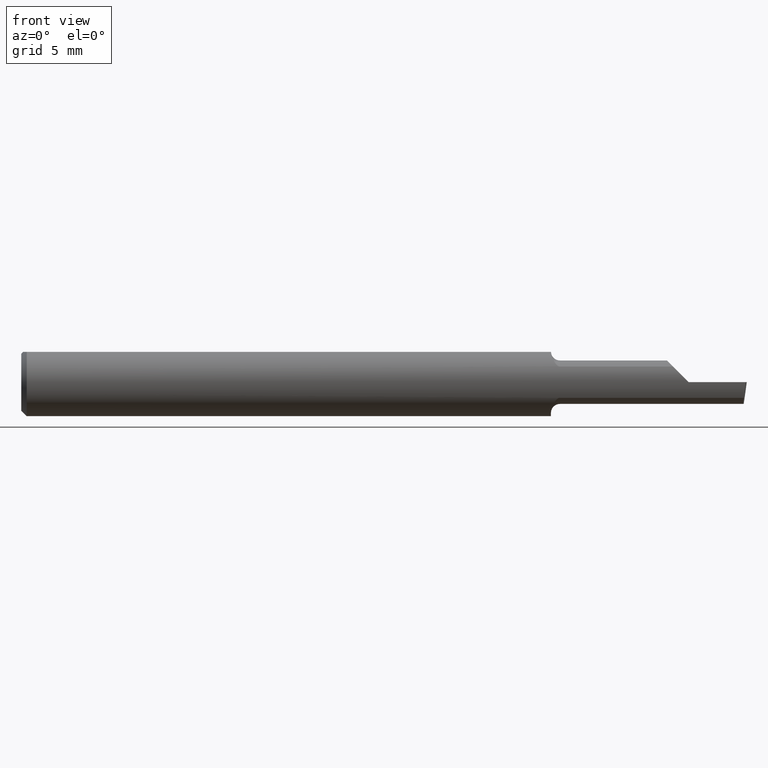
[diagram: clean part render]
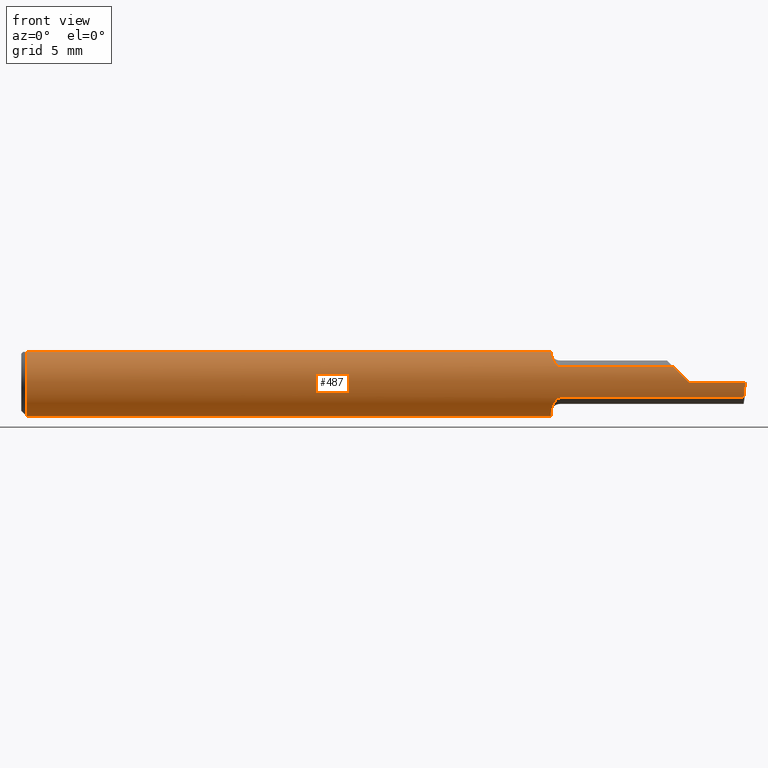
[diagram: same view with one face highlighted and labeled with its STEP entity id]
A machine part, front view. The second image highlights one B-rep face of the part: STEP entity #487.
In plain terms, the highlighted cylindrical surface (edge-blend (fillet) strip) has radius 2.3774 mm, axis along (-1, -0, -0).
Its self-contained STEP definition (entity closure, byte-faithful):
#4 = B_SPLINE_CURVE_WITH_KNOTS ( 'NONE', 3,
 ( #148, #225, #497, #697 ),
 .UNSPECIFIED., .F., .F.,
 ( 4, 4 ),
 ( 0.001735506710063806739, 0.001793010945052110183 ),
 .UNSPECIFIED. ) ;
#7 = ORIENTED_EDGE ( 'NONE', *, *, #9, .F. ) ;
#9 = EDGE_CURVE ( 'NONE', #543, #617, #201, .T. ) ;
#13 = EDGE_CURVE ( 'NONE', #182, #440, #228, .T. ) ;
#15 = CARTESIAN_POINT ( 'NONE',  ( 1.796877448822106649, -0.08307469879518074307, 0.04312255117789294545 ) ) ;
#16 = ORIENTED_EDGE ( 'NONE', *, *, #196, .F. ) ;
#18 = DIRECTION ( 'NONE',  ( 0.0000000000000000000, 0.0000000000000000000, 1.000000000000000000 ) ) ;
#19 = CARTESIAN_POINT ( 'NONE',  ( 5.659797890829555466E-31, -0.09359999999999998876, 1.030335658007946046E-15 ) ) ;
#46 = CARTESIAN_POINT ( 'NONE',  ( 1.824917075065774830, -0.09360000000000001652, 0.01508292493422502302 ) ) ;
#48 = DIRECTION ( 'NONE',  ( 1.000000000000000000, 0.0000000000000000000, 0.0000000000000000000 ) ) ;
#51 = CARTESIAN_POINT ( 'NONE',  ( 1.484999999999999876, -0.08307469879518063205, 0.04312255117789300790 ) ) ;
#64 = DIRECTION ( 'NONE',  ( -1.000000000000000000, -0.0000000000000000000, -0.0000000000000000000 ) ) ;
#75 = CIRCLE ( 'NONE', #94, 0.09360000000000001652 ) ;
#77 = CARTESIAN_POINT ( 'NONE',  ( 0.01499999999999999598, 0.04209513035969837669, 0.08360000000000000764 ) ) ;
#80 = CARTESIAN_POINT ( 'NONE',  ( 1.840000000000000080, -0.09360000000000005815, 1.959434878635762025E-17 ) ) ;
#94 = AXIS2_PLACEMENT_3D ( 'NONE', #648, #455, #18 ) ;
#98 = EDGE_CURVE ( 'NONE', #440, #153, #161, .T. ) ;
#102 = CARTESIAN_POINT ( 'NONE',  ( 0.0000000000000000000, 0.0000000000000000000, 0.0000000000000000000 ) ) ;
#103 = VERTEX_POINT ( 'NONE', #284 ) ;
#106 = CARTESIAN_POINT ( 'NONE',  ( 1.991365359011875169, -0.08307469879518077083, -0.04312255117789289688 ) ) ;
#117 = CARTESIAN_POINT ( 'NONE',  ( 1.669999999999999929, -0.08307469879518077083, 0.04312255117789289688 ) ) ;
#120 = VECTOR ( 'NONE', #562, 39.37007874015748143 ) ;
#121 = DIRECTION ( 'NONE',  ( -1.000000000000000000, -0.0000000000000000000, -0.0000000000000000000 ) ) ;
#139 = CARTESIAN_POINT ( 'NONE',  ( 1.810264301876177928, -0.09002356847881788637, 0.02973569812382168345 ) ) ;
#146 = CARTESIAN_POINT ( 'NONE',  ( 1.460121283746727894, -0.04659318327468391779, -0.08137765652544189099 ) ) ;
#148 = CARTESIAN_POINT ( 'NONE',  ( 1.460020127471512996, -0.04149999999999998829, -0.08389702020930184245 ) ) ;
#153 = VERTEX_POINT ( 'NONE', #726 ) ;
#160 = DIRECTION ( 'NONE',  ( 1.000000000000000000, 0.0000000000000000000, 0.0000000000000000000 ) ) ;
#161 =( BOUNDED_CURVE ( )  B_SPLINE_CURVE ( 3, ( #80, #46, #139, #15 ),
 .UNSPECIFIED., .F., .T. ) 
 B_SPLINE_CURVE_WITH_KNOTS ( ( 4, 4 ),
 ( 4.712388980384689674, 5.191185112936687496 ),
 .UNSPECIFIED. ) 
 CURVE ( )  GEOMETRIC_REPRESENTATION_ITEM ( )  RATIONAL_B_SPLINE_CURVE ( ( 1.000000000000000000, 0.9809872534005956712, 0.9809872534005956712, 1.000000000000000000 ) ) 
 REPRESENTATION_ITEM ( '' )  );
#172 = FACE_OUTER_BOUND ( 'NONE', #320, .T. ) ;
#180 = CARTESIAN_POINT ( 'NONE',  ( 1.460020127471512996, -0.04149999999999998829, -0.08389702020930184245 ) ) ;
#181 = CARTESIAN_POINT ( 'NONE',  ( 1.473672693420809310, -0.07917899622880057720, -0.04997532113045941721 ) ) ;
#182 = VERTEX_POINT ( 'NONE', #441 ) ;
#188 = CARTESIAN_POINT ( 'NONE',  ( 1.467169981117900202, -0.07201923175886887352, 0.06001882546782343064 ) ) ;
#191 = CARTESIAN_POINT ( 'NONE',  ( 1.994533757673610408, -0.09360000000000001652, -0.01508292493422509241 ) ) ;
#196 = EDGE_CURVE ( 'NONE', #239, #103, #713, .T. ) ;
#201 = B_SPLINE_CURVE_WITH_KNOTS ( 'NONE', 3,
 ( #345, #385, #694, #612, #222, #188, #627, #507, #560, #692, #563, #51 ),
 .UNSPECIFIED., .F., .F.,
 ( 4, 2, 2, 2, 2, 4 ),
 ( 4.385794166508631868E-07, 0.0004249653867803444818, 0.0008494921941440384964, 0.001274019001507732457, 0.001486282405189579599, 0.001698545808871426525 ),
 .UNSPECIFIED. ) ;
#204 = ORIENTED_EDGE ( 'NONE', *, *, #415, .F. ) ;
#209 = ORIENTED_EDGE ( 'NONE', *, *, #615, .F. ) ;
#221 = CARTESIAN_POINT ( 'NONE',  ( 1.469237437666585544, -0.07513599091569017618, -0.05602756047418827601 ) ) ;
#222 = CARTESIAN_POINT ( 'NONE',  ( 1.463721006865827512, -0.06478644025684782148, 0.06776242552123264151 ) ) ;
#225 = CARTESIAN_POINT ( 'NONE',  ( 1.460006719116742291, -0.04082489400077269487, -0.08423096411932438909 ) ) ;
#227 = CARTESIAN_POINT ( 'NONE',  ( 1.996386342823452065, -0.09360000000000009979, -6.634435288474567089E-17 ) ) ;
#228 = LINE ( 'NONE', #19, #364 ) ;
#229 = DIRECTION ( 'NONE',  ( -1.000000000000000000, -0.0000000000000000000, -0.0000000000000000000 ) ) ;
#231 = ORIENTED_EDGE ( 'NONE', *, *, #510, .F. ) ;
#238 = DIRECTION ( 'NONE',  ( 0.0000000000000000000, 0.0000000000000000000, -1.000000000000000000 ) ) ;
#239 = VERTEX_POINT ( 'NONE', #77 ) ;
#240 = CARTESIAN_POINT ( 'NONE',  ( 1.840000000000000080, -0.09360000000000005815, 1.959434878635762025E-17 ) ) ;
#245 = CARTESIAN_POINT ( 'NONE',  ( 1.991365359011875169, -0.08307469879518077083, -0.04312255117789289688 ) ) ;
#251 = ORIENTED_EDGE ( 'NONE', *, *, #429, .T. ) ;
#261 = CARTESIAN_POINT ( 'NONE',  ( 1.484999999999999876, -0.08307469879518099287, -0.04312255117789264708 ) ) ;
#267 = CARTESIAN_POINT ( 'NONE',  ( 0.0000000000000000000, 0.04209513035969837669, 0.08360000000000000764 ) ) ;
#270 = ORIENTED_EDGE ( 'NONE', *, *, #449, .F. ) ;
#272 = CARTESIAN_POINT ( 'NONE',  ( 1.669999999999999929, -0.08307469879518077083, -0.04312255117789289688 ) ) ;
#284 = CARTESIAN_POINT ( 'NONE',  ( 0.01499999999999999598, 0.0000000000000000000, -0.09360000000000001652 ) ) ;
#286 = DIRECTION ( 'NONE',  ( -1.000000000000000000, -0.0000000000000000000, -0.0000000000000000000 ) ) ;
#288 = CARTESIAN_POINT ( 'NONE',  ( 0.01499999999999999598, 0.0000000000000000000, 0.0000000000000000000 ) ) ;
#296 = DIRECTION ( 'NONE',  ( -1.000000000000000000, -0.0000000000000000000, -0.0000000000000000000 ) ) ;
#302 =( BOUNDED_CURVE ( )  B_SPLINE_CURVE ( 3, ( #245, #491, #191, #227 ),
 .UNSPECIFIED., .F., .F. ) 
 B_SPLINE_CURVE_WITH_KNOTS ( ( 4, 4 ),
 ( 0.8819507499627845526, 1.360746882514781042 ),
 .UNSPECIFIED. ) 
 CURVE ( )  GEOMETRIC_REPRESENTATION_ITEM ( )  RATIONAL_B_SPLINE_CURVE ( ( 1.000000000000000000, 0.9809872534005956712, 0.9809872534005956712, 1.000000000000000000 ) ) 
 REPRESENTATION_ITEM ( '' )  );
#306 = EDGE_CURVE ( 'NONE', #103, #474, #75, .T. ) ;
#307 = EDGE_CURVE ( 'NONE', #239, #363, #589, .T. ) ;
#319 = VECTOR ( 'NONE', #48, 39.37007874015748143 ) ;
#320 = EDGE_LOOP ( 'NONE', ( #209, #382, #631, #665, #231, #7, #251, #369, #16, #654, #270, #204, #431 ) ) ;
#322 = CARTESIAN_POINT ( 'NONE',  ( 1.462355770679723665, -0.06040702343486043652, -0.07171535245186137775 ) ) ;
#344 = CARTESIAN_POINT ( 'NONE',  ( 1.460604804002112456, -0.05145819953596714874, -0.07838465384289881877 ) ) ;
#345 = CARTESIAN_POINT ( 'NONE',  ( 1.460033712670300021, -0.04209513035969835587, 0.08360000000000000764 ) ) ;
#347 = EDGE_CURVE ( 'NONE', #720, #696, #469, .T. ) ;
#358 = VECTOR ( 'NONE', #229, 39.37007874015748143 ) ;
#363 = VERTEX_POINT ( 'NONE', #704 ) ;
#364 = VECTOR ( 'NONE', #296, 39.37007874015748143 ) ;
#369 = ORIENTED_EDGE ( 'NONE', *, *, #306, .F. ) ;
#375 = VECTOR ( 'NONE', #286, 39.37007874015748143 ) ;
#379 = CARTESIAN_POINT ( 'NONE',  ( 1.459999999999999742, 0.0000000000000000000, 0.0000000000000000000 ) ) ;
#382 = ORIENTED_EDGE ( 'NONE', *, *, #462, .T. ) ;
#383 = CARTESIAN_POINT ( 'NONE',  ( 0.0000000000000000000, -0.04209513035969835587, 0.08360000000000000764 ) ) ;
#385 = CARTESIAN_POINT ( 'NONE',  ( 1.460163936266268614, -0.04714148439307228738, 0.08105900800387486060 ) ) ;
#415 = EDGE_CURVE ( 'NONE', #696, #418, #4, .T. ) ;
#417 = CARTESIAN_POINT ( 'NONE',  ( 1.459999999999999742, -0.03946024096385552377, -0.08487549341873930342 ) ) ;
#418 = VERTEX_POINT ( 'NONE', #417 ) ;
#420 = CIRCLE ( 'NONE', #678, 0.09360000000000001652 ) ;
#429 = EDGE_CURVE ( 'NONE', #543, #474, #709, .T. ) ;
#431 = ORIENTED_EDGE ( 'NONE', *, *, #347, .F. ) ;
#440 = VERTEX_POINT ( 'NONE', #240 ) ;
#441 = CARTESIAN_POINT ( 'NONE',  ( 1.996386342823452065, -0.09360000000000009979, -6.634435288474567089E-17 ) ) ;
#449 = EDGE_CURVE ( 'NONE', #418, #363, #420, .T. ) ;
#455 = DIRECTION ( 'NONE',  ( -1.000000000000000000, -0.0000000000000000000, -0.0000000000000000000 ) ) ;
#458 = CYLINDRICAL_SURFACE ( 'NONE', #558, 0.09360000000000001652 ) ;
#462 = EDGE_CURVE ( 'NONE', #500, #182, #302, .T. ) ;
#469 = B_SPLINE_CURVE_WITH_KNOTS ( 'NONE', 3,
 ( #261, #655, #643, #509, #181, #221, #472, #470, #322, #344, #146, #528 ),
 .UNSPECIFIED., .F., .F.,
 ( 4, 2, 2, 2, 2, 4 ),
 ( 1.963546462201886234E-07, 0.0002171101490734183095, 0.0004340239435006164629, 0.0008678515323550130408, 0.001301679121209409727, 0.001735506710063806739 ),
 .UNSPECIFIED. ) ;
#470 = CARTESIAN_POINT ( 'NONE',  ( 1.463605992736884298, -0.06448586599545334808, -0.06805619079784636094 ) ) ;
#472 = CARTESIAN_POINT ( 'NONE',  ( 1.467076397983111180, -0.07187891021191496199, -0.06019546731975675136 ) ) ;
#474 = VERTEX_POINT ( 'NONE', #515 ) ;
#478 = LINE ( 'NONE', #117, #319 ) ;
#487 = ADVANCED_FACE ( 'NONE', ( #172 ), #458, .T. ) ;
#491 = CARTESIAN_POINT ( 'NONE',  ( 1.992827658777091893, -0.09002356847881787250, -0.02973569812382169039 ) ) ;
#497 = CARTESIAN_POINT ( 'NONE',  ( 1.459999999999999742, -0.04014498638740778003, -0.08455714216888013390 ) ) ;
#500 = VERTEX_POINT ( 'NONE', #106 ) ;
#507 = CARTESIAN_POINT ( 'NONE',  ( 1.473723886093657010, -0.07921817987507924486, 0.04991299092652128067 ) ) ;
#509 = CARTESIAN_POINT ( 'NONE',  ( 1.475354605856553647, -0.08039319987159071479, -0.04797642756495484884 ) ) ;
#510 = EDGE_CURVE ( 'NONE', #617, #153, #478, .T. ) ;
#515 = CARTESIAN_POINT ( 'NONE',  ( 0.01499999999999999944, -0.04209513035969835587, 0.08360000000000000764 ) ) ;
#528 = CARTESIAN_POINT ( 'NONE',  ( 1.460020127471512996, -0.04149999999999998829, -0.08389702020930184245 ) ) ;
#530 = LINE ( 'NONE', #272, #375 ) ;
#543 = VERTEX_POINT ( 'NONE', #642 ) ;
#558 = AXIS2_PLACEMENT_3D ( 'NONE', #102, #121, #724 ) ;
#560 = CARTESIAN_POINT ( 'NONE',  ( 1.475413575230741570, -0.08042664989321215985, 0.04791921015141201862 ) ) ;
#562 = DIRECTION ( 'NONE',  ( 1.000000000000000000, 0.0000000000000000000, 0.0000000000000000000 ) ) ;
#563 = CARTESIAN_POINT ( 'NONE',  ( 1.482123707331537643, -0.08307469879541821978, 0.04312255117743567928 ) ) ;
#589 = LINE ( 'NONE', #267, #120 ) ;
#612 = CARTESIAN_POINT ( 'NONE',  ( 1.462429122971264706, -0.06066239981255451552, 0.07149394324265896661 ) ) ;
#615 = EDGE_CURVE ( 'NONE', #500, #720, #530, .T. ) ;
#617 = VERTEX_POINT ( 'NONE', #727 ) ;
#627 = CARTESIAN_POINT ( 'NONE',  ( 1.469277238843510247, -0.07518688180261751119, 0.05595855205958086970 ) ) ;
#631 = ORIENTED_EDGE ( 'NONE', *, *, #13, .T. ) ;
#642 = CARTESIAN_POINT ( 'NONE',  ( 1.460033712670300021, -0.04209513035969835587, 0.08360000000000000764 ) ) ;
#643 = CARTESIAN_POINT ( 'NONE',  ( 1.479498465877714164, -0.08233174416856400835, -0.04456779206614370353 ) ) ;
#648 = CARTESIAN_POINT ( 'NONE',  ( 0.01499999999999999598, 0.0000000000000000000, 0.0000000000000000000 ) ) ;
#654 = ORIENTED_EDGE ( 'NONE', *, *, #307, .T. ) ;
#655 = CARTESIAN_POINT ( 'NONE',  ( 1.482100790213034092, -0.08307469879518092348, -0.04312255117789265402 ) ) ;
#665 = ORIENTED_EDGE ( 'NONE', *, *, #98, .T. ) ;
#669 = AXIS2_PLACEMENT_3D ( 'NONE', #288, #64, #722 ) ;
#676 = CARTESIAN_POINT ( 'NONE',  ( 1.484999999999999876, -0.08307469879518099287, -0.04312255117789264708 ) ) ;
#678 = AXIS2_PLACEMENT_3D ( 'NONE', #379, #160, #238 ) ;
#692 = CARTESIAN_POINT ( 'NONE',  ( 1.479521451227007622, -0.08233651528522399621, 0.04455777109850301426 ) ) ;
#694 = CARTESIAN_POINT ( 'NONE',  ( 1.460661035553191267, -0.05185656404701180500, 0.07811662714583193778 ) ) ;
#696 = VERTEX_POINT ( 'NONE', #180 ) ;
#697 = CARTESIAN_POINT ( 'NONE',  ( 1.459999999999999742, -0.03946024096385552377, -0.08487549341873930342 ) ) ;
#704 = CARTESIAN_POINT ( 'NONE',  ( 1.459999999999999742, 0.04209513035969836975, 0.08360000000000000764 ) ) ;
#709 = LINE ( 'NONE', #383, #358 ) ;
#713 = CIRCLE ( 'NONE', #669, 0.09360000000000001652 ) ;
#720 = VERTEX_POINT ( 'NONE', #676 ) ;
#722 = DIRECTION ( 'NONE',  ( 0.0000000000000000000, 0.0000000000000000000, 1.000000000000000000 ) ) ;
#724 = DIRECTION ( 'NONE',  ( 0.0000000000000000000, 0.0000000000000000000, 1.000000000000000000 ) ) ;
#726 = CARTESIAN_POINT ( 'NONE',  ( 1.796877448822106649, -0.08307469879518074307, 0.04312255117789294545 ) ) ;
#727 = CARTESIAN_POINT ( 'NONE',  ( 1.484999999999999876, -0.08307469879518063205, 0.04312255117789300790 ) ) ;